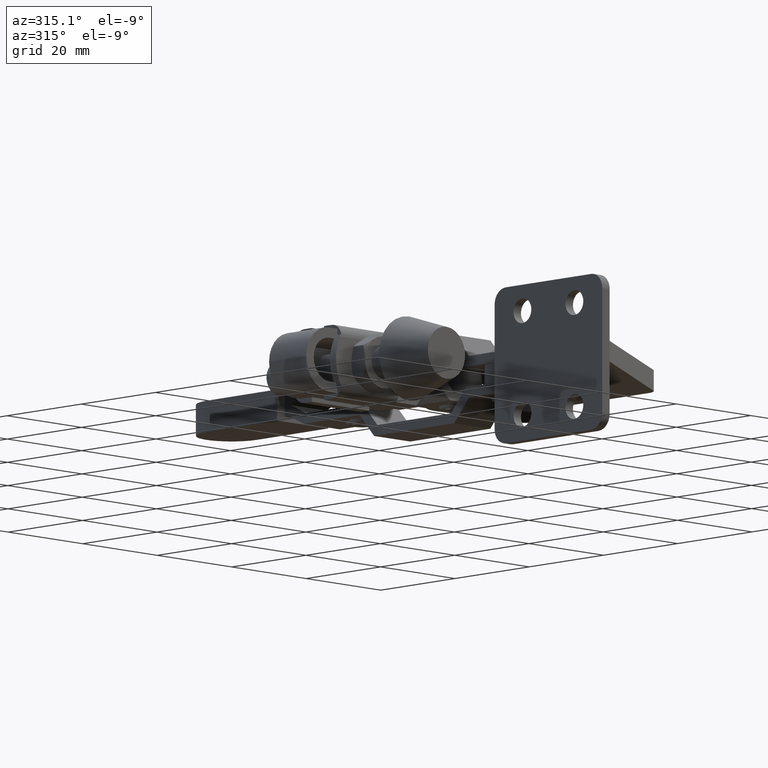
[diagram: clean part render]
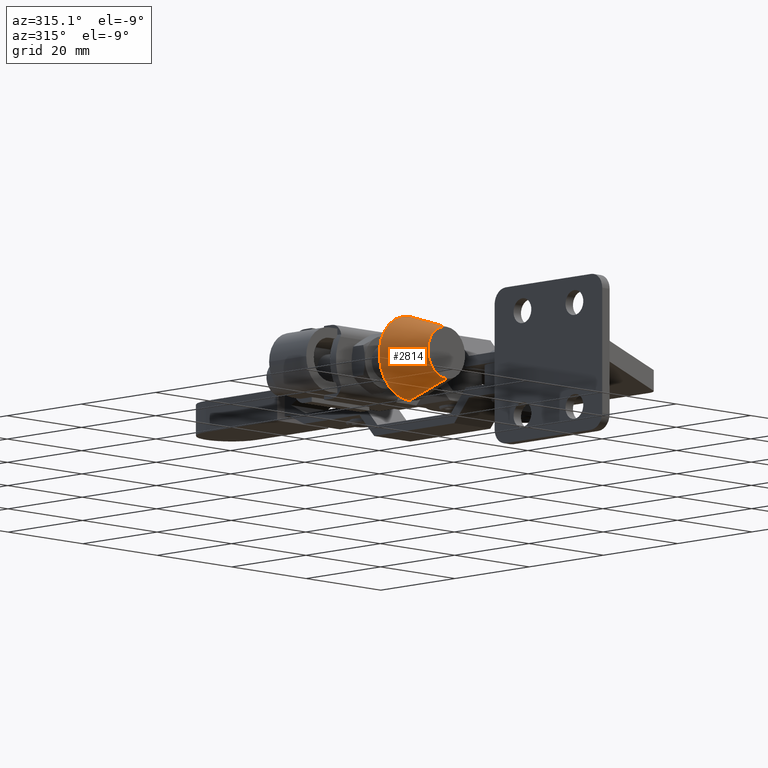
[diagram: same view with one face highlighted and labeled with its STEP entity id]
A machine part, auxiliary view. The second image highlights one B-rep face of the part: STEP entity #2814.
In plain terms, the highlighted conical surface has half-angle 17.223 deg.
Its self-contained STEP definition (entity closure, byte-faithful):
#726 = FACE_OUTER_BOUND ( 'NONE', #1400, .T. ) ;
#935 = CARTESIAN_POINT ( 'NONE',  ( -18.72238137839922000, 23.17999999999992200, -5.000000000000006200 ) ) ;
#1400 = EDGE_LOOP ( 'NONE', ( #4006, #3772, #3601, #7686 ) ) ;
#1418 = CIRCLE ( 'NONE', #4518, 5.000000000000000000 ) ;
#1696 = DIRECTION ( 'NONE',  ( -0.0000000000000000000, -1.000000000000000000, -0.0000000000000000000 ) ) ;
#2240 = LINE ( 'NONE', #7897, #8546 ) ;
#2365 = VERTEX_POINT ( 'NONE', #7151 ) ;
#2517 = CARTESIAN_POINT ( 'NONE',  ( -18.72238137839922000, 23.17999999999992200, -6.328887329891365800E-015 ) ) ;
#2814 = ADVANCED_FACE ( 'NONE', ( #726 ), #5446, .T. ) ;
#3441 = DIRECTION ( 'NONE',  ( 0.0000000000000000000, 0.0000000000000000000, 1.000000000000000000 ) ) ;
#3601 = ORIENTED_EDGE ( 'NONE', *, *, #7209, .T. ) ;
#3772 = ORIENTED_EDGE ( 'NONE', *, *, #5525, .F. ) ;
#3782 = VERTEX_POINT ( 'NONE', #6589 ) ;
#4006 = ORIENTED_EDGE ( 'NONE', *, *, #4138, .F. ) ;
#4138 = EDGE_CURVE ( 'NONE', #8852, #2365, #10015, .T. ) ;
#4465 = CIRCLE ( 'NONE', #5032, 8.099999999999999600 ) ;
#4518 = AXIS2_PLACEMENT_3D ( 'NONE', #7548, #7559, #7566 ) ;
#4824 = VERTEX_POINT ( 'NONE', #6024 ) ;
#5032 = AXIS2_PLACEMENT_3D ( 'NONE', #7126, #1696, #8746 ) ;
#5446 = CONICAL_SURFACE ( 'NONE', #8392, 5.000000000000000000, 0.3006056700423954100 ) ;
#5525 = EDGE_CURVE ( 'NONE', #3782, #8852, #1418, .T. ) ;
#6024 = CARTESIAN_POINT ( 'NONE',  ( -18.72238137839922000, 33.17999999999992200, 8.099999999999992500 ) ) ;
#6589 = CARTESIAN_POINT ( 'NONE',  ( -18.72238137839922000, 23.17999999999992200, 4.999999999999993800 ) ) ;
#7126 = CARTESIAN_POINT ( 'NONE',  ( -18.72238137839922000, 33.17999999999992200, -6.328887329891365800E-015 ) ) ;
#7151 = CARTESIAN_POINT ( 'NONE',  ( -18.72238137839922000, 33.17999999999992200, -8.100000000000006800 ) ) ;
#7209 = EDGE_CURVE ( 'NONE', #3782, #4824, #2240, .T. ) ;
#7296 = DIRECTION ( 'NONE',  ( 0.0000000000000000000, 1.000000000000000000, 0.0000000000000000000 ) ) ;
#7344 = CARTESIAN_POINT ( 'NONE',  ( -18.72238137839922000, 23.17999999999992200, -5.000000000000006200 ) ) ;
#7548 = CARTESIAN_POINT ( 'NONE',  ( -18.72238137839922000, 23.17999999999992200, -6.328887329891365800E-015 ) ) ;
#7559 = DIRECTION ( 'NONE',  ( -0.0000000000000000000, -1.000000000000000000, -0.0000000000000000000 ) ) ;
#7566 = DIRECTION ( 'NONE',  ( 0.0000000000000000000, 0.0000000000000000000, -1.000000000000000000 ) ) ;
#7686 = ORIENTED_EDGE ( 'NONE', *, *, #7850, .T. ) ;
#7850 = EDGE_CURVE ( 'NONE', #4824, #2365, #4465, .T. ) ;
#7897 = CARTESIAN_POINT ( 'NONE',  ( -18.72238137839922000, 23.17999999999992200, 4.999999999999993800 ) ) ;
#8124 = DIRECTION ( 'NONE',  ( 0.0000000000000000000, 0.9551573261744535900, 0.2960987711140805100 ) ) ;
#8392 = AXIS2_PLACEMENT_3D ( 'NONE', #2517, #7296, #3441 ) ;
#8546 = VECTOR ( 'NONE', #8124, 999.9999999999998900 ) ;
#8685 = DIRECTION ( 'NONE',  ( 3.626164122763234500E-017, 0.9551573261744535900, -0.2960987711140805100 ) ) ;
#8746 = DIRECTION ( 'NONE',  ( 0.0000000000000000000, 0.0000000000000000000, -1.000000000000000000 ) ) ;
#8852 = VERTEX_POINT ( 'NONE', #935 ) ;
#9931 = VECTOR ( 'NONE', #8685, 999.9999999999998900 ) ;
#10015 = LINE ( 'NONE', #7344, #9931 ) ;